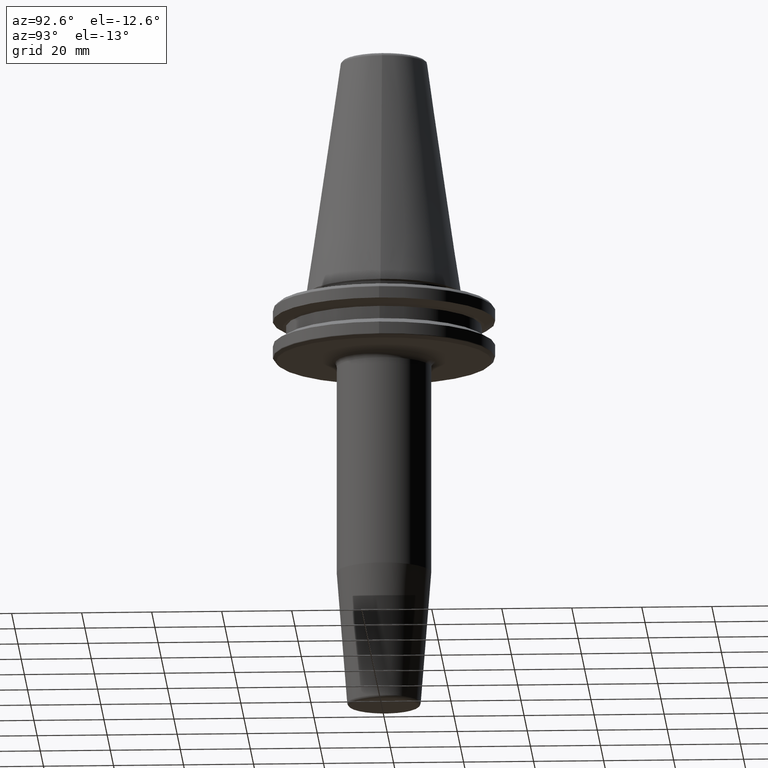
[diagram: clean part render]
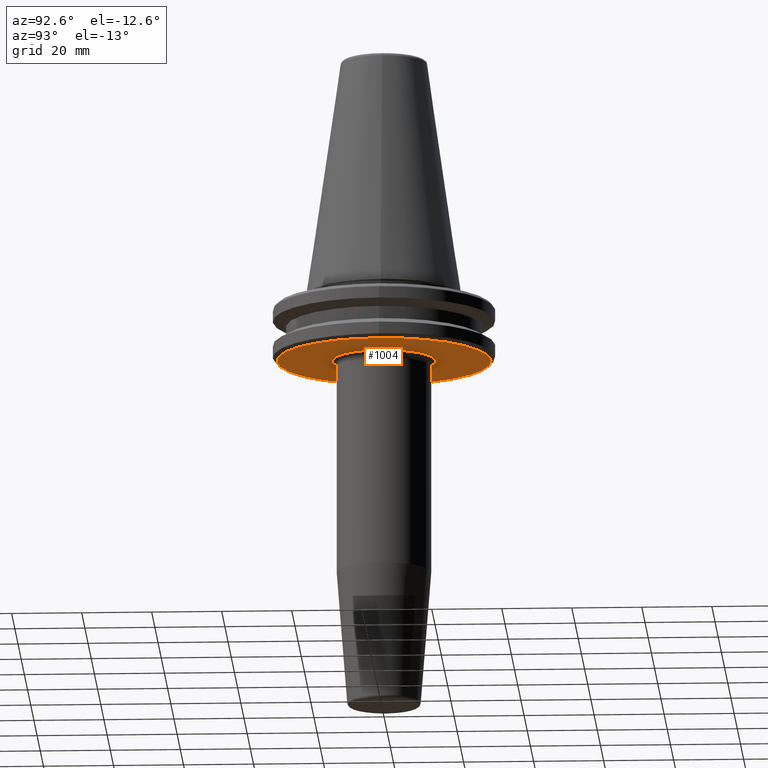
[diagram: same view with one face highlighted and labeled with its STEP entity id]
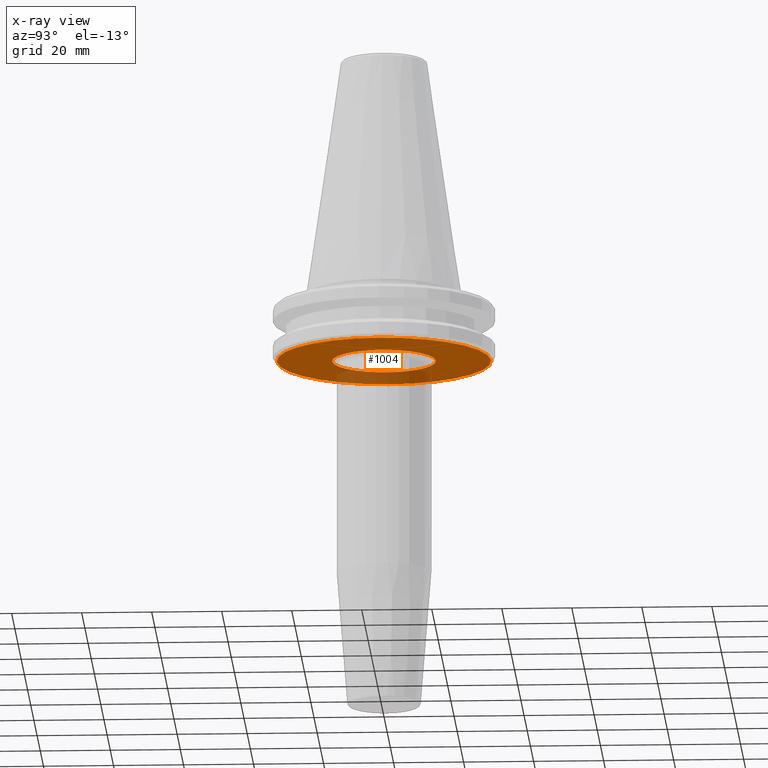
[diagram: x-ray of the same camera — body ghosted, the highlighted face saturated]
A machine part, auxiliary view. The second image highlights one B-rep face of the part: STEP entity #1004.
The next image is the same camera in x-ray: the body ghosted, the highlighted face saturated — about 19% of this face is hidden behind the body in this view.
In plain terms, the highlighted planar face has unit normal (0, 0, -1).
Its self-contained STEP definition (entity closure, byte-faithful):
#16 = EDGE_LOOP ( 'NONE', ( #228, #1176 ) ) ;
#31 = AXIS2_PLACEMENT_3D ( 'NONE', #72, #859, #1155 ) ;
#37 = EDGE_CURVE ( 'NONE', #51, #1070, #769, .T. ) ;
#51 = VERTEX_POINT ( 'NONE', #183 ) ;
#72 = CARTESIAN_POINT ( 'NONE',  ( 0.0000000000000000000, -1.734723475976807100E-014, -19.10000000000000500 ) ) ;
#86 = ORIENTED_EDGE ( 'NONE', *, *, #852, .F. ) ;
#148 = CARTESIAN_POINT ( 'NONE',  ( 0.0000000000000000000, 0.0000000000000000000, -19.10000000000000500 ) ) ;
#173 = EDGE_LOOP ( 'NONE', ( #227, #86 ) ) ;
#183 = CARTESIAN_POINT ( 'NONE',  ( 1.815604372569383200E-015, -14.82553478956936900, -19.10000000000000500 ) ) ;
#198 = AXIS2_PLACEMENT_3D ( 'NONE', #148, #822, #253 ) ;
#227 = ORIENTED_EDGE ( 'NONE', *, *, #1065, .F. ) ;
#228 = ORIENTED_EDGE ( 'NONE', *, *, #1175, .F. ) ;
#233 = VERTEX_POINT ( 'NONE', #1084 ) ;
#234 = DIRECTION ( 'NONE',  ( 0.0000000000000000000, 0.0000000000000000000, -1.000000000000000000 ) ) ;
#253 = DIRECTION ( 'NONE',  ( 1.000000000000000000, 0.0000000000000000000, 0.0000000000000000000 ) ) ;
#271 = DIRECTION ( 'NONE',  ( 0.0000000000000000000, 0.0000000000000000000, -1.000000000000000000 ) ) ;
#333 = CIRCLE ( 'NONE', #198, 30.58431457505076500 ) ;
#372 = CARTESIAN_POINT ( 'NONE',  ( 0.0000000000000000000, 2.166680460328873200E-015, -19.10000000000000500 ) ) ;
#444 = CARTESIAN_POINT ( 'NONE',  ( -30.58431457505076500, 3.762817415969875600E-015, -19.10000000000000500 ) ) ;
#466 = VERTEX_POINT ( 'NONE', #444 ) ;
#474 = PLANE ( 'NONE',  #1260 ) ;
#503 = CARTESIAN_POINT ( 'NONE',  ( 0.0000000000000000000, 0.0000000000000000000, -19.10000000000000500 ) ) ;
#562 = DIRECTION ( 'NONE',  ( -1.000000000000000000, 0.0000000000000000000, -0.0000000000000000000 ) ) ;
#581 = CARTESIAN_POINT ( 'NONE',  ( 0.0000000000000000000, 14.82553478956932500, -19.10000000000000500 ) ) ;
#586 = DIRECTION ( 'NONE',  ( 1.000000000000000000, 0.0000000000000000000, 0.0000000000000000000 ) ) ;
#692 = FACE_OUTER_BOUND ( 'NONE', #173, .T. ) ;
#769 = CIRCLE ( 'NONE', #31, 14.82553478956934600 ) ;
#822 = DIRECTION ( 'NONE',  ( -0.0000000000000000000, -0.0000000000000000000, 1.000000000000000000 ) ) ;
#832 = CIRCLE ( 'NONE', #1106, 14.82553478956934600 ) ;
#852 = EDGE_CURVE ( 'NONE', #466, #233, #333, .T. ) ;
#859 = DIRECTION ( 'NONE',  ( 0.0000000000000000000, 0.0000000000000000000, -1.000000000000000000 ) ) ;
#902 = DIRECTION ( 'NONE',  ( 1.000000000000000000, 0.0000000000000000000, 0.0000000000000000000 ) ) ;
#1004 = ADVANCED_FACE ( 'NONE', ( #1211, #692 ), #474, .T. ) ;
#1065 = EDGE_CURVE ( 'NONE', #233, #466, #1142, .T. ) ;
#1070 = VERTEX_POINT ( 'NONE', #581 ) ;
#1084 = CARTESIAN_POINT ( 'NONE',  ( 30.58431457505076500, 0.0000000000000000000, -19.10000000000000500 ) ) ;
#1106 = AXIS2_PLACEMENT_3D ( 'NONE', #1137, #234, #902 ) ;
#1133 = AXIS2_PLACEMENT_3D ( 'NONE', #503, #1165, #586 ) ;
#1137 = CARTESIAN_POINT ( 'NONE',  ( 0.0000000000000000000, -1.734723475976807100E-014, -19.10000000000000500 ) ) ;
#1142 = CIRCLE ( 'NONE', #1133, 30.58431457505076500 ) ;
#1155 = DIRECTION ( 'NONE',  ( 1.000000000000000000, 0.0000000000000000000, 0.0000000000000000000 ) ) ;
#1165 = DIRECTION ( 'NONE',  ( -0.0000000000000000000, -0.0000000000000000000, 1.000000000000000000 ) ) ;
#1175 = EDGE_CURVE ( 'NONE', #1070, #51, #832, .T. ) ;
#1176 = ORIENTED_EDGE ( 'NONE', *, *, #37, .F. ) ;
#1211 = FACE_BOUND ( 'NONE', #16, .T. ) ;
#1260 = AXIS2_PLACEMENT_3D ( 'NONE', #372, #271, #562 ) ;